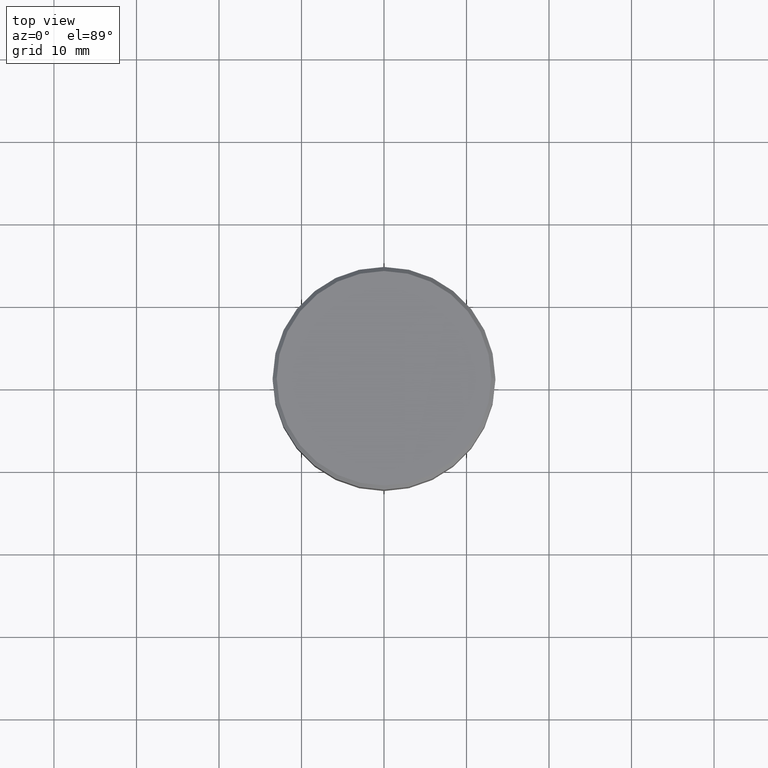
[diagram: clean part render]
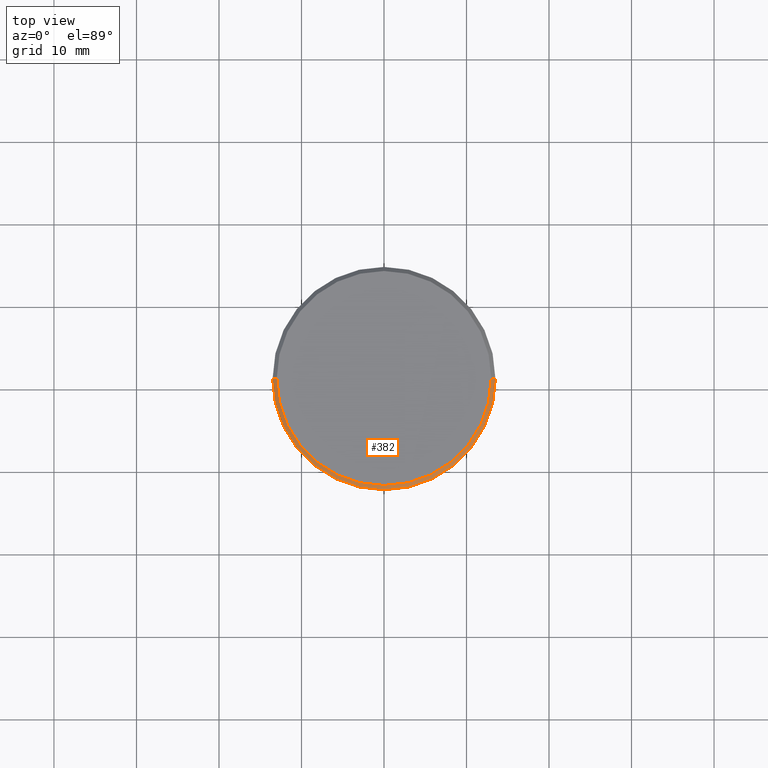
[diagram: same view with one face highlighted and labeled with its STEP entity id]
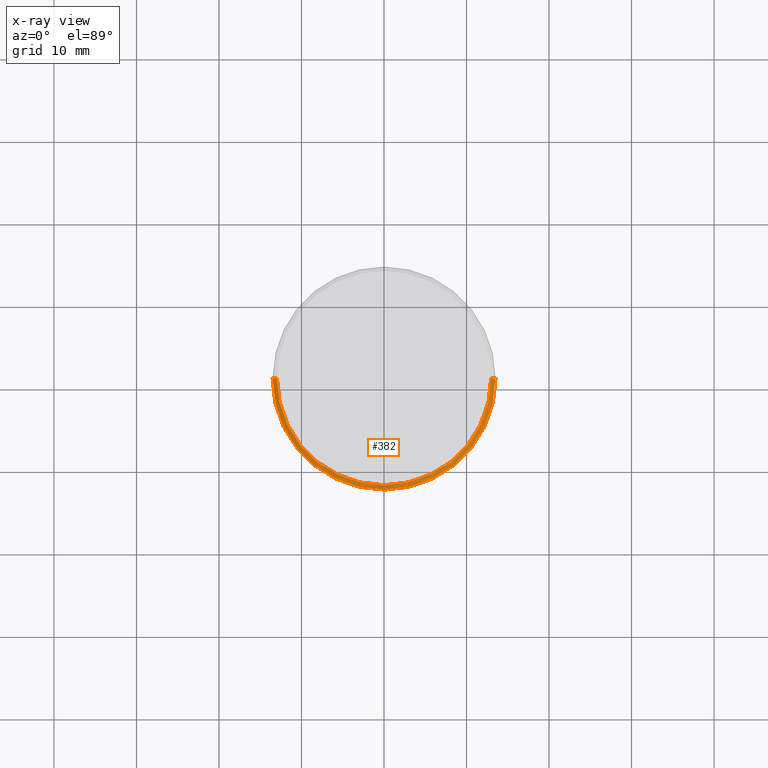
[diagram: x-ray of the same camera — body ghosted, the highlighted face saturated]
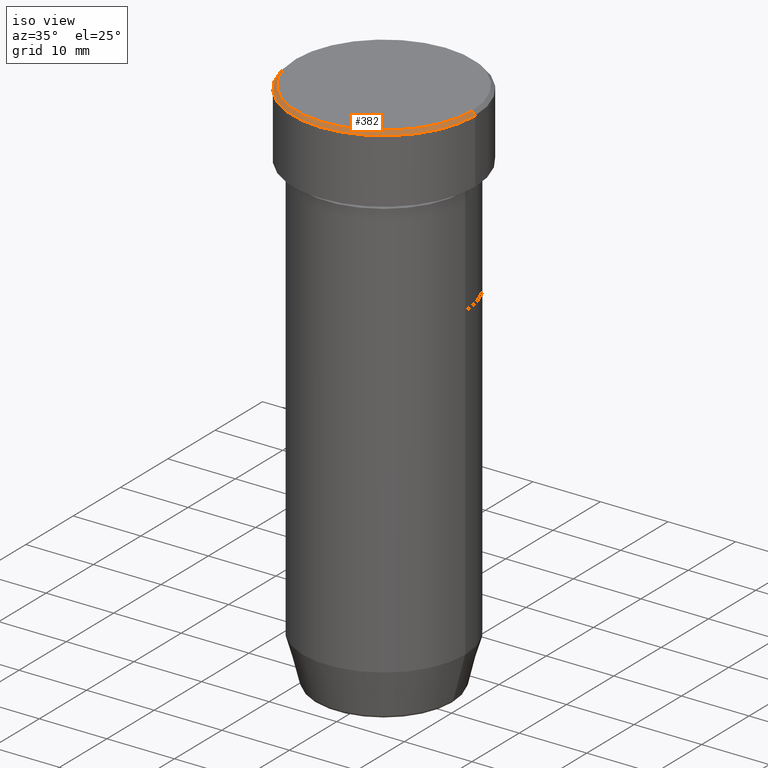
[diagram: same view with one face highlighted and labeled with its STEP entity id]
A machine part, top view. The second image highlights one B-rep face of the part: STEP entity #382.
The next image is the same camera in x-ray: the body ghosted, the highlighted face saturated — about 0% of this face is hidden behind the body in this view.
A second angle (iso view) of the same face is appended — the face is thin or edge-on in the first view.
In plain terms, the highlighted conical surface has half-angle 45 deg.
Its self-contained STEP definition (entity closure, byte-faithful):
#17 = CARTESIAN_POINT ( 'NONE',  ( -13.50000000000000000, 1.653273178848926867E-15, -0.5000000000000091038 ) ) ;
#31 = ORIENTED_EDGE ( 'NONE', *, *, #125, .T. ) ;
#37 = CARTESIAN_POINT ( 'NONE',  ( -12.99999999999999645, 0.000000000000000000, 0.000000000000000000 ) ) ;
#40 = DIRECTION ( 'NONE',  ( -0.000000000000000000, -0.000000000000000000, 1.000000000000000000 ) ) ;
#48 = EDGE_CURVE ( 'NONE', #571, #215, #308, .T. ) ;
#54 = CARTESIAN_POINT ( 'NONE',  ( 12.99999999999999645, 1.622657008870242882E-15, 0.000000000000000000 ) ) ;
#79 = AXIS2_PLACEMENT_3D ( 'NONE', #321, #40, #104 ) ;
#85 = DIRECTION ( 'NONE',  ( -0.7071067811865439090, 0.000000000000000000, -0.7071067811865512365 ) ) ;
#104 = DIRECTION ( 'NONE',  ( 1.000000000000000000, 0.000000000000000000, 0.000000000000000000 ) ) ;
#122 = VECTOR ( 'NONE', #436, 1000.000000000000000 ) ;
#125 = EDGE_CURVE ( 'NONE', #510, #215, #449, .T. ) ;
#127 = CARTESIAN_POINT ( 'NONE',  ( 0.000000000000000000, 0.000000000000000000, 0.000000000000000000 ) ) ;
#150 = ORIENTED_EDGE ( 'NONE', *, *, #48, .F. ) ;
#181 = CARTESIAN_POINT ( 'NONE',  ( 0.000000000000000000, 0.000000000000000000, -0.5000000000000091038 ) ) ;
#191 = CARTESIAN_POINT ( 'NONE',  ( -12.99999999999999645, 0.000000000000000000, 0.000000000000000000 ) ) ;
#198 = CONICAL_SURFACE ( 'NONE', #428, 12.99999999999999645, 0.7853981633974431720 ) ;
#210 = CARTESIAN_POINT ( 'NONE',  ( 12.99999999999999645, 1.592040838891558701E-15, 0.000000000000000000 ) ) ;
#215 = VERTEX_POINT ( 'NONE', #17 ) ;
#217 = VERTEX_POINT ( 'NONE', #54 ) ;
#278 = DIRECTION ( 'NONE',  ( 0.000000000000000000, 0.000000000000000000, -1.000000000000000000 ) ) ;
#308 = CIRCLE ( 'NONE', #532, 13.50000000000000000 ) ;
#315 = LINE ( 'NONE', #210, #122 ) ;
#321 = CARTESIAN_POINT ( 'NONE',  ( 0.000000000000000000, 0.000000000000000000, 0.000000000000000000 ) ) ;
#350 = CIRCLE ( 'NONE', #79, 12.99999999999999645 ) ;
#361 = FACE_OUTER_BOUND ( 'NONE', #538, .T. ) ;
#370 = ORIENTED_EDGE ( 'NONE', *, *, #376, .F. ) ;
#376 = EDGE_CURVE ( 'NONE', #217, #571, #315, .T. ) ;
#382 = ADVANCED_FACE ( 'NONE', ( #361 ), #198, .T. ) ;
#397 = DIRECTION ( 'NONE',  ( 0.000000000000000000, 0.000000000000000000, -1.000000000000000000 ) ) ;
#411 = DIRECTION ( 'NONE',  ( 1.000000000000000000, 0.000000000000000000, 0.000000000000000000 ) ) ;
#428 = AXIS2_PLACEMENT_3D ( 'NONE', #127, #397, #481 ) ;
#436 = DIRECTION ( 'NONE',  ( 0.7071067811865439090, 8.659560562354888485E-17, -0.7071067811865512365 ) ) ;
#449 = LINE ( 'NONE', #37, #543 ) ;
#468 = CARTESIAN_POINT ( 'NONE',  ( 13.50000000000000000, 0.000000000000000000, -0.5000000000000091038 ) ) ;
#481 = DIRECTION ( 'NONE',  ( -1.000000000000000000, 0.000000000000000000, 0.000000000000000000 ) ) ;
#499 = ORIENTED_EDGE ( 'NONE', *, *, #592, .F. ) ;
#510 = VERTEX_POINT ( 'NONE', #191 ) ;
#532 = AXIS2_PLACEMENT_3D ( 'NONE', #181, #278, #411 ) ;
#538 = EDGE_LOOP ( 'NONE', ( #370, #499, #31, #150 ) ) ;
#543 = VECTOR ( 'NONE', #85, 1000.000000000000000 ) ;
#571 = VERTEX_POINT ( 'NONE', #468 ) ;
#592 = EDGE_CURVE ( 'NONE', #510, #217, #350, .T. ) ;